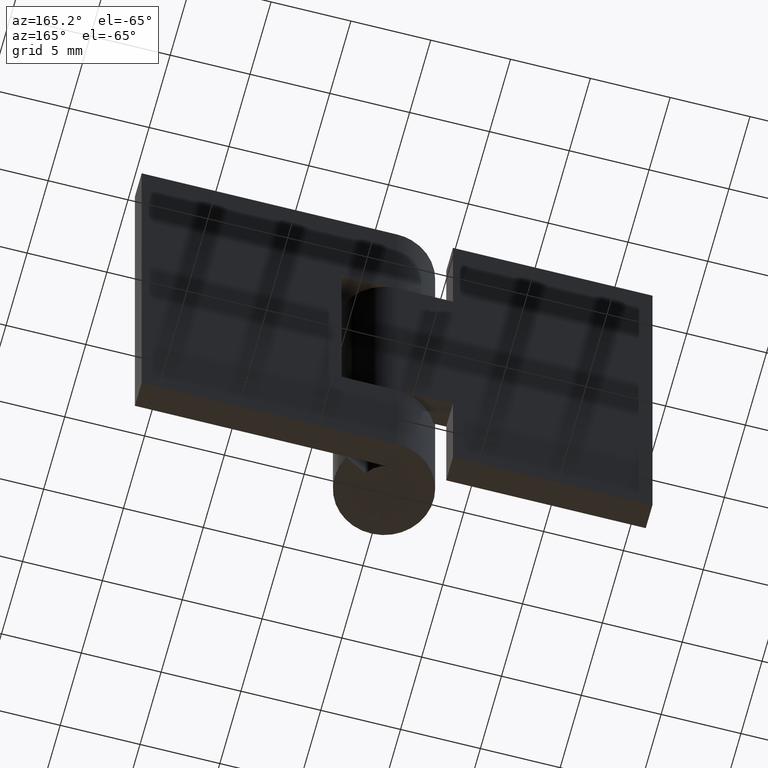
[diagram: clean part render]
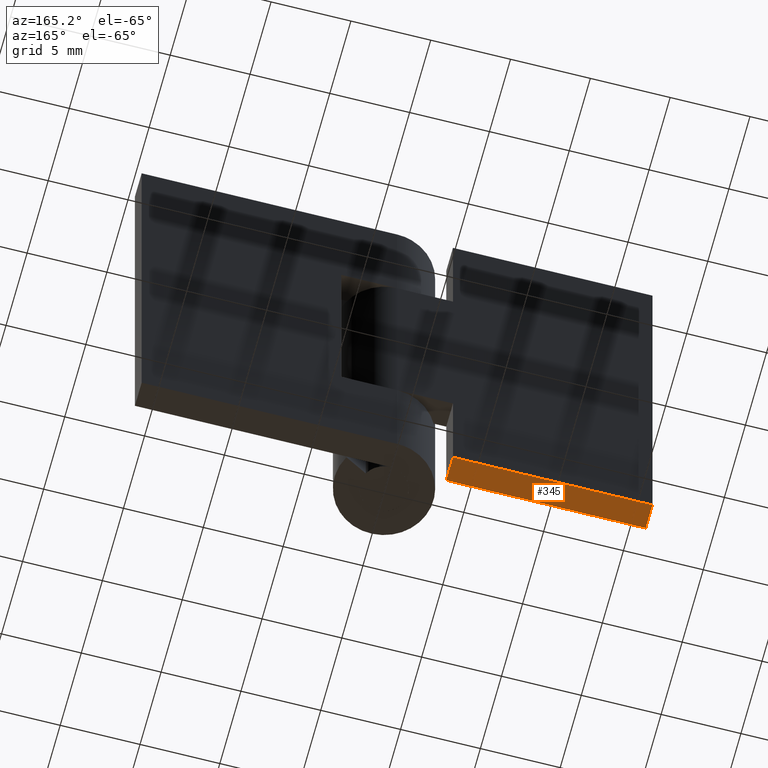
[diagram: same view with one face highlighted and labeled with its STEP entity id]
A machine part, auxiliary view. The second image highlights one B-rep face of the part: STEP entity #345.
In plain terms, the highlighted face is a freeform B-spline surface patch.
Its self-contained STEP definition (entity closure, byte-faithful):
#247=CARTESIAN_POINT('',(-3.500000000000100,1.500000000000000,0.0));
#248=VERTEX_POINT('',#247);
#254=CARTESIAN_POINT('',(-3.500000000000100,3.099998000000050,0.0));
#255=VERTEX_POINT('',#254);
#256=CARTESIAN_POINT('',(-3.500000000000100,1.500000000000000,0.0));
#257=CARTESIAN_POINT('',(-3.500000000000100,3.099998000000050,0.0));
#258=QUASI_UNIFORM_CURVE('',1,(#256,#257),.UNSPECIFIED.,.F.,.U.);
#259=EDGE_CURVE('',#248,#255,#258,.T.);
#303=CARTESIAN_POINT('',(-16.0,3.099998000000000,0.0));
#304=VERTEX_POINT('',#303);
#305=CARTESIAN_POINT('',(-16.0,1.500000000000000,0.0));
#306=VERTEX_POINT('',#305);
#307=CARTESIAN_POINT('',(-16.0,3.099998000000000,0.0));
#308=CARTESIAN_POINT('',(-16.0,1.500000000000000,0.0));
#309=QUASI_UNIFORM_CURVE('',1,(#307,#308),.UNSPECIFIED.,.F.,.U.);
#310=EDGE_CURVE('',#304,#306,#309,.T.);
#326=CARTESIAN_POINT('',(-16.624374975772572,1.420080103001104,0.0));
#327=CARTESIAN_POINT('',(-2.875624688951403,1.420080103001104,0.0));
#328=CARTESIAN_POINT('',(-16.624374975772572,3.179917939914236,0.0));
#329=CARTESIAN_POINT('',(-2.875624688951403,3.179917939914236,0.0));
#330=B_SPLINE_SURFACE_WITH_KNOTS('',1,1,((#326,#328),(#327,#329)),.UNSPECIFIED.,.F.,.F.,.U.,(2,2),(2,2),(0.0,13.748750286821171),(0.041708334948495,0.958291687403247),.UNSPECIFIED.);
#331=CARTESIAN_POINT('',(-3.500000000000100,3.099998000000050,0.0));
#332=CARTESIAN_POINT('',(-16.0,3.099998000000000,0.0));
#333=QUASI_UNIFORM_CURVE('',1,(#331,#332),.UNSPECIFIED.,.F.,.U.);
#334=EDGE_CURVE('',#255,#304,#333,.T.);
#335=ORIENTED_EDGE('',*,*,#334,.F.);
#336=ORIENTED_EDGE('',*,*,#259,.F.);
#337=CARTESIAN_POINT('',(-16.0,1.500000000000000,0.0));
#338=CARTESIAN_POINT('',(-3.500000000000100,1.500000000000000,0.0));
#339=QUASI_UNIFORM_CURVE('',1,(#337,#338),.UNSPECIFIED.,.F.,.U.);
#340=EDGE_CURVE('',#306,#248,#339,.T.);
#341=ORIENTED_EDGE('',*,*,#340,.F.);
#342=ORIENTED_EDGE('',*,*,#310,.F.);
#343=EDGE_LOOP('',(#335,#336,#341,#342));
#344=FACE_OUTER_BOUND('',#343,.T.);
#345=ADVANCED_FACE('',(#344),#330,.F.);